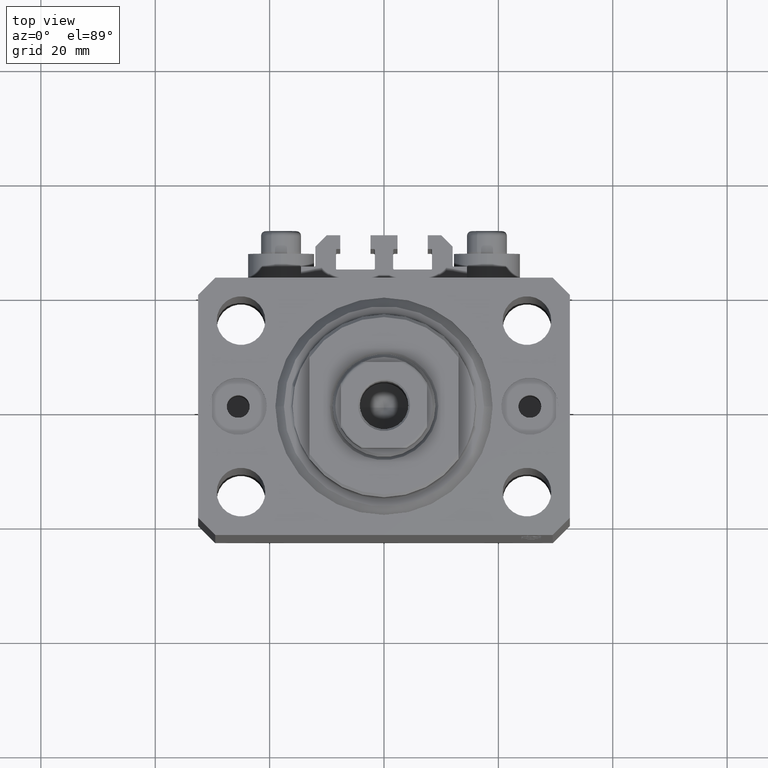
[diagram: clean part render]
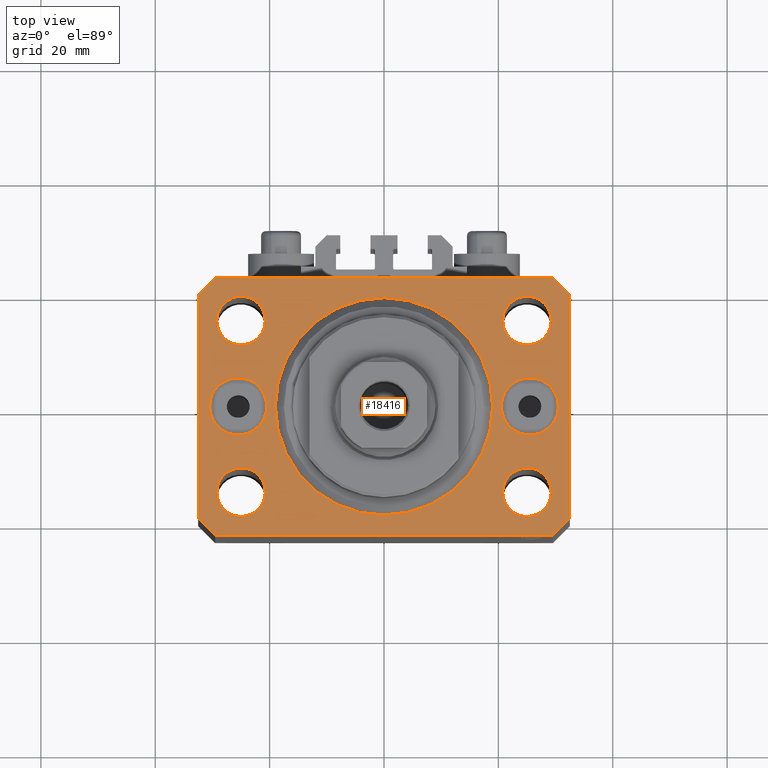
[diagram: same view with one face highlighted and labeled with its STEP entity id]
A machine part, top view. The second image highlights one B-rep face of the part: STEP entity #18416.
In plain terms, the highlighted planar face has unit normal (0, 0, 1).
Its self-contained STEP definition (entity closure, byte-faithful):
#80 = DIRECTION ( 'NONE',  ( 0.000000000000000000, 0.000000000000000000, 1.000000000000000000 ) ) ;
#597 = CARTESIAN_POINT ( 'NONE',  ( 20.49999999999665690, 6.123233995740857512E-16, 0.000000000000000000 ) ) ;
#694 = CARTESIAN_POINT ( 'NONE',  ( -32.49999999999650413, 19.49999999999949907, 0.000000000000000000 ) ) ;
#1090 = DIRECTION ( 'NONE',  ( 1.000000000000000000, 0.000000000000000000, 0.000000000000000000 ) ) ;
#1169 = CARTESIAN_POINT ( 'NONE',  ( -25.00000000000000000, 14.99999999999999645, 0.000000000000000000 ) ) ;
#1707 = VERTEX_POINT ( 'NONE', #25754 ) ;
#1728 = VERTEX_POINT ( 'NONE', #47011 ) ;
#1787 = DIRECTION ( 'NONE',  ( 1.334402673828349134E-14, 1.000000000000000000, 0.000000000000000000 ) ) ;
#2005 = ORIENTED_EDGE ( 'NONE', *, *, #8445, .T. ) ;
#2113 = AXIS2_PLACEMENT_3D ( 'NONE', #9423, #23045, #1090 ) ;
#2256 = VERTEX_POINT ( 'NONE', #23992 ) ;
#2393 = VECTOR ( 'NONE', #24551, 1000.000000000000000 ) ;
#2413 = CARTESIAN_POINT ( 'NONE',  ( -32.49999999999650413, -19.49999999999949907, 0.000000000000000000 ) ) ;
#3245 = CIRCLE ( 'NONE', #16193, 4.250000000040370374 ) ;
#3308 = CARTESIAN_POINT ( 'NONE',  ( 29.49999999999650413, -22.49999999999949196, 0.000000000000000000 ) ) ;
#3359 = LINE ( 'NONE', #2413, #4013 ) ;
#3564 = DIRECTION ( 'NONE',  ( 1.000000000000000000, 0.000000000000000000, 0.000000000000000000 ) ) ;
#3646 = FACE_BOUND ( 'NONE', #11116, .T. ) ;
#4013 = VECTOR ( 'NONE', #22184, 1000.000000000000114 ) ;
#4112 = AXIS2_PLACEMENT_3D ( 'NONE', #31991, #46555, #13877 ) ;
#4396 = CARTESIAN_POINT ( 'NONE',  ( -25.00000000000000000, 14.99999999999999645, 0.000000000000000000 ) ) ;
#4568 = ORIENTED_EDGE ( 'NONE', *, *, #44354, .T. ) ;
#4745 = CIRCLE ( 'NONE', #19243, 4.249999999957291053 ) ;
#5063 = EDGE_CURVE ( 'NONE', #19843, #34119, #3359, .T. ) ;
#6072 = VERTEX_POINT ( 'NONE', #35746 ) ;
#6298 = VERTEX_POINT ( 'NONE', #20925 ) ;
#6610 = VERTEX_POINT ( 'NONE', #21113 ) ;
#6770 = ORIENTED_EDGE ( 'NONE', *, *, #46306, .F. ) ;
#6909 = CARTESIAN_POINT ( 'NONE',  ( 29.49999999999650413, -22.49999999999949196, 0.000000000000000000 ) ) ;
#6989 = PLANE ( 'NONE',  #25880 ) ;
#7398 = ORIENTED_EDGE ( 'NONE', *, *, #9313, .F. ) ;
#7563 = CIRCLE ( 'NONE', #8315, 4.250000000021375790 ) ;
#7714 = AXIS2_PLACEMENT_3D ( 'NONE', #4396, #15362, #19883 ) ;
#7953 = CARTESIAN_POINT ( 'NONE',  ( -25.50000000000000000, 0.000000000000000000, 0.000000000000000000 ) ) ;
#8315 = AXIS2_PLACEMENT_3D ( 'NONE', #1169, #15731, #44836 ) ;
#8445 = EDGE_CURVE ( 'NONE', #10590, #6610, #17847, .T. ) ;
#9290 = CARTESIAN_POINT ( 'NONE',  ( 24.99999999999999289, -15.00000000000000355, 0.000000000000000000 ) ) ;
#9313 = EDGE_CURVE ( 'NONE', #6298, #36847, #26244, .T. ) ;
#9350 = ORIENTED_EDGE ( 'NONE', *, *, #27650, .F. ) ;
#9423 = CARTESIAN_POINT ( 'NONE',  ( 0.000000000000000000, 0.000000000000000000, 0.000000000000000000 ) ) ;
#9638 = VECTOR ( 'NONE', #46510, 1000.000000000000000 ) ;
#9659 = CARTESIAN_POINT ( 'NONE',  ( 32.49999999999651124, -19.49999999999949196, 0.000000000000000000 ) ) ;
#10025 = DIRECTION ( 'NONE',  ( -1.000000000000000000, -3.528251137580330676E-16, 0.000000000000000000 ) ) ;
#10403 = VECTOR ( 'NONE', #24930, 1000.000000000000000 ) ;
#10465 = AXIS2_PLACEMENT_3D ( 'NONE', #7953, #80, #28956 ) ;
#10540 = CARTESIAN_POINT ( 'NONE',  ( 25.00000000000000000, 14.99999999999999289, 0.000000000000000000 ) ) ;
#10590 = VERTEX_POINT ( 'NONE', #597 ) ;
#10714 = VERTEX_POINT ( 'NONE', #44492 ) ;
#10944 = CARTESIAN_POINT ( 'NONE',  ( 32.49999999999702993, 19.49999999999945999, 0.000000000000000000 ) ) ;
#11116 = EDGE_LOOP ( 'NONE', ( #44894, #24417 ) ) ;
#11182 = ORIENTED_EDGE ( 'NONE', *, *, #23735, .F. ) ;
#11843 = VECTOR ( 'NONE', #22733, 1000.000000000000114 ) ;
#12492 = CARTESIAN_POINT ( 'NONE',  ( 0.000000000000000000, 0.000000000000000000, 0.000000000000000000 ) ) ;
#12596 = CARTESIAN_POINT ( 'NONE',  ( 32.49999999999702993, 19.49999999999945999, 0.000000000000000000 ) ) ;
#12620 = AXIS2_PLACEMENT_3D ( 'NONE', #9290, #23849, #38863 ) ;
#13068 = CIRCLE ( 'NONE', #7714, 4.250000000021375790 ) ;
#13217 = EDGE_LOOP ( 'NONE', ( #37149, #14989, #14632, #46220, #4568, #35629, #44236, #34209 ) ) ;
#13465 = ORIENTED_EDGE ( 'NONE', *, *, #37198, .F. ) ;
#13877 = DIRECTION ( 'NONE',  ( 1.000000000000000000, 0.000000000000000000, 0.000000000000000000 ) ) ;
#14163 = CARTESIAN_POINT ( 'NONE',  ( 0.000000000000000000, 0.000000000000000000, 0.000000000000000000 ) ) ;
#14164 = ORIENTED_EDGE ( 'NONE', *, *, #24978, .F. ) ;
#14282 = CARTESIAN_POINT ( 'NONE',  ( -32.49999999999650413, -19.49999999999949907, 0.000000000000000000 ) ) ;
#14326 = CIRCLE ( 'NONE', #2113, 19.00000000000000000 ) ;
#14332 = EDGE_CURVE ( 'NONE', #17573, #33281, #38528, .T. ) ;
#14465 = ORIENTED_EDGE ( 'NONE', *, *, #29601, .F. ) ;
#14632 = ORIENTED_EDGE ( 'NONE', *, *, #29073, .T. ) ;
#14713 = CARTESIAN_POINT ( 'NONE',  ( 24.99999999999999289, -15.00000000000000355, 0.000000000000000000 ) ) ;
#14863 = FACE_OUTER_BOUND ( 'NONE', #13217, .T. ) ;
#14989 = ORIENTED_EDGE ( 'NONE', *, *, #15589, .T. ) ;
#15362 = DIRECTION ( 'NONE',  ( 0.000000000000000000, 0.000000000000000000, 1.000000000000000000 ) ) ;
#15589 = EDGE_CURVE ( 'NONE', #6072, #2256, #40613, .T. ) ;
#15731 = DIRECTION ( 'NONE',  ( 0.000000000000000000, 0.000000000000000000, 1.000000000000000000 ) ) ;
#16193 = AXIS2_PLACEMENT_3D ( 'NONE', #40382, #44431, #22247 ) ;
#16395 = AXIS2_PLACEMENT_3D ( 'NONE', #14713, #29244, #17587 ) ;
#17113 = CIRCLE ( 'NONE', #27752, 4.249999999957291053 ) ;
#17513 = EDGE_LOOP ( 'NONE', ( #11182, #7398 ) ) ;
#17573 = VERTEX_POINT ( 'NONE', #27280 ) ;
#17587 = DIRECTION ( 'NONE',  ( 1.000000000000000000, 0.000000000000000000, 0.000000000000000000 ) ) ;
#17643 = LINE ( 'NONE', #10944, #9638 ) ;
#17847 = CIRCLE ( 'NONE', #4112, 5.000000000003342215 ) ;
#17989 = CARTESIAN_POINT ( 'NONE',  ( 29.24999999995729283, 14.99999999999999289, 0.000000000000000000 ) ) ;
#18004 = EDGE_CURVE ( 'NONE', #10714, #44591, #7563, .T. ) ;
#18416 = ADVANCED_FACE ( 'NONE', ( #14863, #28699, #21541, #3646, #28454, #36548, #46834, #43014 ), #6989, .T. ) ;
#19044 = CARTESIAN_POINT ( 'NONE',  ( -29.49999999999650413, -22.49999999999949907, 0.000000000000000000 ) ) ;
#19130 = ORIENTED_EDGE ( 'NONE', *, *, #21449, .T. ) ;
#19243 = AXIS2_PLACEMENT_3D ( 'NONE', #10540, #39630, #36281 ) ;
#19843 = VERTEX_POINT ( 'NONE', #14282 ) ;
#19883 = DIRECTION ( 'NONE',  ( 1.000000000000000000, 0.000000000000000000, 0.000000000000000000 ) ) ;
#20578 = CARTESIAN_POINT ( 'NONE',  ( 29.24999999997631051, -15.00000000000000355, 0.000000000000000000 ) ) ;
#20654 = VECTOR ( 'NONE', #29790, 1000.000000000000000 ) ;
#20925 = CARTESIAN_POINT ( 'NONE',  ( -30.50000000000333955, 6.123233995740857512E-16, 0.000000000000000000 ) ) ;
#21113 = CARTESIAN_POINT ( 'NONE',  ( 30.50000000000333955, 0.000000000000000000, 0.000000000000000000 ) ) ;
#21261 = ORIENTED_EDGE ( 'NONE', *, *, #32616, .F. ) ;
#21449 = EDGE_CURVE ( 'NONE', #6610, #10590, #27022, .T. ) ;
#21541 = FACE_BOUND ( 'NONE', #29619, .T. ) ;
#21783 = DIRECTION ( 'NONE',  ( 0.000000000000000000, 0.000000000000000000, 1.000000000000000000 ) ) ;
#22157 = CARTESIAN_POINT ( 'NONE',  ( -29.25000000002137668, 14.99999999999999645, 0.000000000000000000 ) ) ;
#22184 = DIRECTION ( 'NONE',  ( 0.7071067811865474617, -0.7071067811865474617, 0.000000000000000000 ) ) ;
#22247 = DIRECTION ( 'NONE',  ( 1.000000000000000000, 0.000000000000000000, 0.000000000000000000 ) ) ;
#22461 = AXIS2_PLACEMENT_3D ( 'NONE', #30345, #40609, #22955 ) ;
#22733 = DIRECTION ( 'NONE',  ( -0.7071067811865474617, -0.7071067811865474617, 0.000000000000000000 ) ) ;
#22955 = DIRECTION ( 'NONE',  ( 1.000000000000000000, 0.000000000000000000, 0.000000000000000000 ) ) ;
#22977 = EDGE_CURVE ( 'NONE', #33281, #1707, #17643, .T. ) ;
#23001 = EDGE_LOOP ( 'NONE', ( #14465, #14164 ) ) ;
#23045 = DIRECTION ( 'NONE',  ( 0.000000000000000000, 0.000000000000000000, 1.000000000000000000 ) ) ;
#23735 = EDGE_CURVE ( 'NONE', #36847, #6298, #26420, .T. ) ;
#23849 = DIRECTION ( 'NONE',  ( 0.000000000000000000, 0.000000000000000000, 1.000000000000000000 ) ) ;
#23947 = VERTEX_POINT ( 'NONE', #6909 ) ;
#23992 = CARTESIAN_POINT ( 'NONE',  ( -32.49999999999650413, 19.49999999999949907, 0.000000000000000000 ) ) ;
#24417 = ORIENTED_EDGE ( 'NONE', *, *, #45819, .F. ) ;
#24488 = ORIENTED_EDGE ( 'NONE', *, *, #32340, .F. ) ;
#24551 = DIRECTION ( 'NONE',  ( 0.7071067811865483499, 0.7071067811865466846, 0.000000000000000000 ) ) ;
#24684 = LINE ( 'NONE', #39231, #10403 ) ;
#24930 = DIRECTION ( 'NONE',  ( 1.000000000000000000, 1.176083712526788232E-16, 0.000000000000000000 ) ) ;
#24978 = EDGE_CURVE ( 'NONE', #44126, #1728, #14326, .T. ) ;
#24981 = CARTESIAN_POINT ( 'NONE',  ( -19.00000000000000000, 2.326828918379970970E-15, 0.000000000000000000 ) ) ;
#25354 = DIRECTION ( 'NONE',  ( 1.000000000000000000, 0.000000000000000000, -0.000000000000000000 ) ) ;
#25670 = DIRECTION ( 'NONE',  ( 0.000000000000000000, 0.000000000000000000, 1.000000000000000000 ) ) ;
#25754 = CARTESIAN_POINT ( 'NONE',  ( 29.49999999999707967, 22.49999999999952038, 0.000000000000000000 ) ) ;
#25787 = EDGE_CURVE ( 'NONE', #1707, #6072, #38893, .T. ) ;
#25880 = AXIS2_PLACEMENT_3D ( 'NONE', #14163, #21783, #25354 ) ;
#26244 = CIRCLE ( 'NONE', #27035, 5.000000000003342215 ) ;
#26420 = CIRCLE ( 'NONE', #10465, 5.000000000003342215 ) ;
#27022 = CIRCLE ( 'NONE', #22461, 5.000000000003342215 ) ;
#27034 = DIRECTION ( 'NONE',  ( 1.000000000000000000, 0.000000000000000000, 0.000000000000000000 ) ) ;
#27035 = AXIS2_PLACEMENT_3D ( 'NONE', #28775, #25670, #47150 ) ;
#27119 = CARTESIAN_POINT ( 'NONE',  ( -29.25000000004036593, -15.00000000000000355, 0.000000000000000000 ) ) ;
#27280 = CARTESIAN_POINT ( 'NONE',  ( 32.49999999999651124, -19.49999999999949196, 0.000000000000000000 ) ) ;
#27454 = CARTESIAN_POINT ( 'NONE',  ( 29.49999999999707967, 22.49999999999952038, 0.000000000000000000 ) ) ;
#27650 = EDGE_CURVE ( 'NONE', #44591, #10714, #13068, .T. ) ;
#27752 = AXIS2_PLACEMENT_3D ( 'NONE', #29534, #35991, #3564 ) ;
#27857 = CIRCLE ( 'NONE', #12620, 4.249999999976314058 ) ;
#28272 = AXIS2_PLACEMENT_3D ( 'NONE', #12492, #33254, #27034 ) ;
#28384 = EDGE_LOOP ( 'NONE', ( #38502, #9350 ) ) ;
#28454 = FACE_BOUND ( 'NONE', #28544, .T. ) ;
#28544 = EDGE_LOOP ( 'NONE', ( #6770, #21261 ) ) ;
#28699 = FACE_BOUND ( 'NONE', #28384, .T. ) ;
#28775 = CARTESIAN_POINT ( 'NONE',  ( -25.50000000000000000, 0.000000000000000000, 0.000000000000000000 ) ) ;
#28783 = CARTESIAN_POINT ( 'NONE',  ( -24.99999999999999289, -15.00000000000000355, 0.000000000000000000 ) ) ;
#28956 = DIRECTION ( 'NONE',  ( 1.000000000000000000, 0.000000000000000000, 0.000000000000000000 ) ) ;
#29073 = EDGE_CURVE ( 'NONE', #2256, #19843, #40540, .T. ) ;
#29244 = DIRECTION ( 'NONE',  ( 0.000000000000000000, 0.000000000000000000, 1.000000000000000000 ) ) ;
#29534 = CARTESIAN_POINT ( 'NONE',  ( 25.00000000000000000, 14.99999999999999289, 0.000000000000000000 ) ) ;
#29601 = EDGE_CURVE ( 'NONE', #1728, #44126, #42755, .T. ) ;
#29619 = EDGE_LOOP ( 'NONE', ( #13465, #24488 ) ) ;
#29790 = DIRECTION ( 'NONE',  ( 0.000000000000000000, -1.000000000000000000, 0.000000000000000000 ) ) ;
#29881 = EDGE_CURVE ( 'NONE', #23947, #17573, #43377, .T. ) ;
#30345 = CARTESIAN_POINT ( 'NONE',  ( 25.50000000000000000, 0.000000000000000000, 0.000000000000000000 ) ) ;
#30563 = CARTESIAN_POINT ( 'NONE',  ( 20.75000000004271072, 14.99999999999999289, 0.000000000000000000 ) ) ;
#31280 = CARTESIAN_POINT ( 'NONE',  ( -20.74999999995962341, -15.00000000000000355, 0.000000000000000000 ) ) ;
#31991 = CARTESIAN_POINT ( 'NONE',  ( 25.50000000000000000, 0.000000000000000000, 0.000000000000000000 ) ) ;
#32340 = EDGE_CURVE ( 'NONE', #38469, #39560, #4745, .T. ) ;
#32616 = EDGE_CURVE ( 'NONE', #35454, #36027, #3245, .T. ) ;
#32742 = EDGE_LOOP ( 'NONE', ( #19130, #2005 ) ) ;
#33246 = CIRCLE ( 'NONE', #16395, 4.249999999976314058 ) ;
#33254 = DIRECTION ( 'NONE',  ( 0.000000000000000000, 0.000000000000000000, 1.000000000000000000 ) ) ;
#33281 = VERTEX_POINT ( 'NONE', #12596 ) ;
#34119 = VERTEX_POINT ( 'NONE', #19044 ) ;
#34209 = ORIENTED_EDGE ( 'NONE', *, *, #22977, .T. ) ;
#35454 = VERTEX_POINT ( 'NONE', #27119 ) ;
#35629 = ORIENTED_EDGE ( 'NONE', *, *, #29881, .T. ) ;
#35746 = CARTESIAN_POINT ( 'NONE',  ( -29.49999999999650413, 22.49999999999949907, 0.000000000000000000 ) ) ;
#35991 = DIRECTION ( 'NONE',  ( 0.000000000000000000, 0.000000000000000000, 1.000000000000000000 ) ) ;
#36027 = VERTEX_POINT ( 'NONE', #31280 ) ;
#36281 = DIRECTION ( 'NONE',  ( 1.000000000000000000, 0.000000000000000000, 0.000000000000000000 ) ) ;
#36548 = FACE_BOUND ( 'NONE', #23001, .T. ) ;
#36847 = VERTEX_POINT ( 'NONE', #39642 ) ;
#37013 = CIRCLE ( 'NONE', #39306, 4.250000000040370374 ) ;
#37041 = CARTESIAN_POINT ( 'NONE',  ( -29.49999999999650413, 22.49999999999949907, 0.000000000000000000 ) ) ;
#37149 = ORIENTED_EDGE ( 'NONE', *, *, #25787, .T. ) ;
#37198 = EDGE_CURVE ( 'NONE', #39560, #38469, #17113, .T. ) ;
#38010 = CARTESIAN_POINT ( 'NONE',  ( 20.75000000002367884, -15.00000000000000355, 0.000000000000000000 ) ) ;
#38469 = VERTEX_POINT ( 'NONE', #30563 ) ;
#38502 = ORIENTED_EDGE ( 'NONE', *, *, #18004, .F. ) ;
#38528 = LINE ( 'NONE', #9659, #46114 ) ;
#38863 = DIRECTION ( 'NONE',  ( 1.000000000000000000, 0.000000000000000000, 0.000000000000000000 ) ) ;
#38893 = LINE ( 'NONE', #27454, #44034 ) ;
#39044 = DIRECTION ( 'NONE',  ( 1.000000000000000000, 0.000000000000000000, 0.000000000000000000 ) ) ;
#39231 = CARTESIAN_POINT ( 'NONE',  ( -29.49999999999650413, -22.49999999999949907, 0.000000000000000000 ) ) ;
#39306 = AXIS2_PLACEMENT_3D ( 'NONE', #28783, #43332, #39044 ) ;
#39560 = VERTEX_POINT ( 'NONE', #17989 ) ;
#39630 = DIRECTION ( 'NONE',  ( 0.000000000000000000, 0.000000000000000000, 1.000000000000000000 ) ) ;
#39642 = CARTESIAN_POINT ( 'NONE',  ( -20.49999999999665690, 0.000000000000000000, 0.000000000000000000 ) ) ;
#40382 = CARTESIAN_POINT ( 'NONE',  ( -24.99999999999999289, -15.00000000000000355, 0.000000000000000000 ) ) ;
#40540 = LINE ( 'NONE', #694, #20654 ) ;
#40609 = DIRECTION ( 'NONE',  ( 0.000000000000000000, -0.000000000000000000, -1.000000000000000000 ) ) ;
#40613 = LINE ( 'NONE', #37041, #11843 ) ;
#41854 = VERTEX_POINT ( 'NONE', #38010 ) ;
#42755 = CIRCLE ( 'NONE', #28272, 19.00000000000000000 ) ;
#43014 = FACE_BOUND ( 'NONE', #32742, .T. ) ;
#43332 = DIRECTION ( 'NONE',  ( 0.000000000000000000, 0.000000000000000000, 1.000000000000000000 ) ) ;
#43377 = LINE ( 'NONE', #3308, #2393 ) ;
#44034 = VECTOR ( 'NONE', #10025, 1000.000000000000000 ) ;
#44126 = VERTEX_POINT ( 'NONE', #24981 ) ;
#44161 = EDGE_CURVE ( 'NONE', #45658, #41854, #33246, .T. ) ;
#44236 = ORIENTED_EDGE ( 'NONE', *, *, #14332, .T. ) ;
#44354 = EDGE_CURVE ( 'NONE', #34119, #23947, #24684, .T. ) ;
#44431 = DIRECTION ( 'NONE',  ( 0.000000000000000000, 0.000000000000000000, 1.000000000000000000 ) ) ;
#44492 = CARTESIAN_POINT ( 'NONE',  ( -20.74999999997862687, 14.99999999999999645, 0.000000000000000000 ) ) ;
#44591 = VERTEX_POINT ( 'NONE', #22157 ) ;
#44836 = DIRECTION ( 'NONE',  ( 1.000000000000000000, 0.000000000000000000, 0.000000000000000000 ) ) ;
#44894 = ORIENTED_EDGE ( 'NONE', *, *, #44161, .F. ) ;
#45658 = VERTEX_POINT ( 'NONE', #20578 ) ;
#45819 = EDGE_CURVE ( 'NONE', #41854, #45658, #27857, .T. ) ;
#46114 = VECTOR ( 'NONE', #1787, 1000.000000000000000 ) ;
#46220 = ORIENTED_EDGE ( 'NONE', *, *, #5063, .T. ) ;
#46306 = EDGE_CURVE ( 'NONE', #36027, #35454, #37013, .T. ) ;
#46510 = DIRECTION ( 'NONE',  ( -0.7071067811865344721, 0.7071067811865606734, 0.000000000000000000 ) ) ;
#46555 = DIRECTION ( 'NONE',  ( 0.000000000000000000, -0.000000000000000000, -1.000000000000000000 ) ) ;
#46834 = FACE_BOUND ( 'NONE', #17513, .T. ) ;
#47011 = CARTESIAN_POINT ( 'NONE',  ( 19.00000000000000000, 0.000000000000000000, 0.000000000000000000 ) ) ;
#47150 = DIRECTION ( 'NONE',  ( 1.000000000000000000, 0.000000000000000000, 0.000000000000000000 ) ) ;